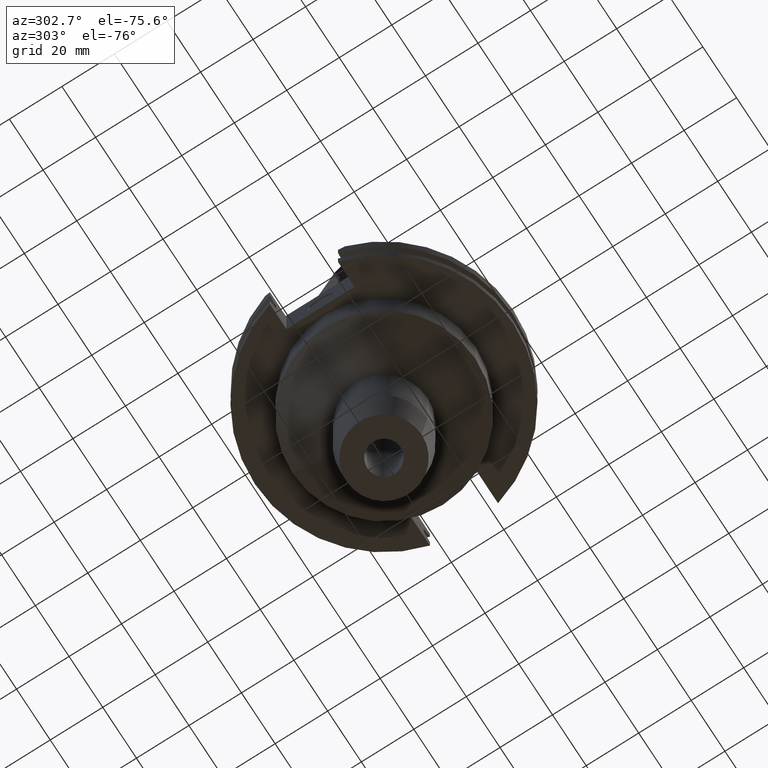
[diagram: clean part render]
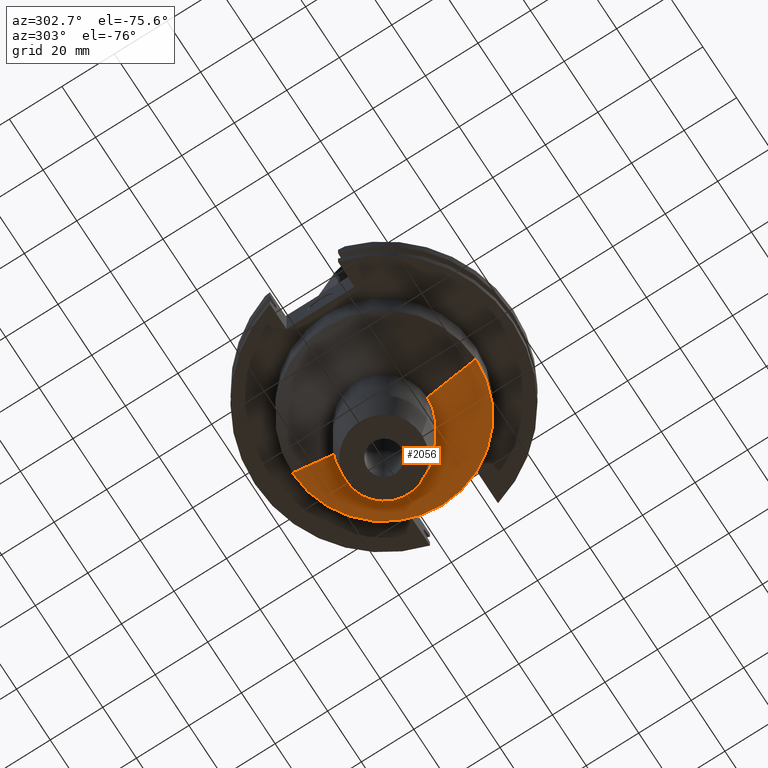
[diagram: same view with one face highlighted and labeled with its STEP entity id]
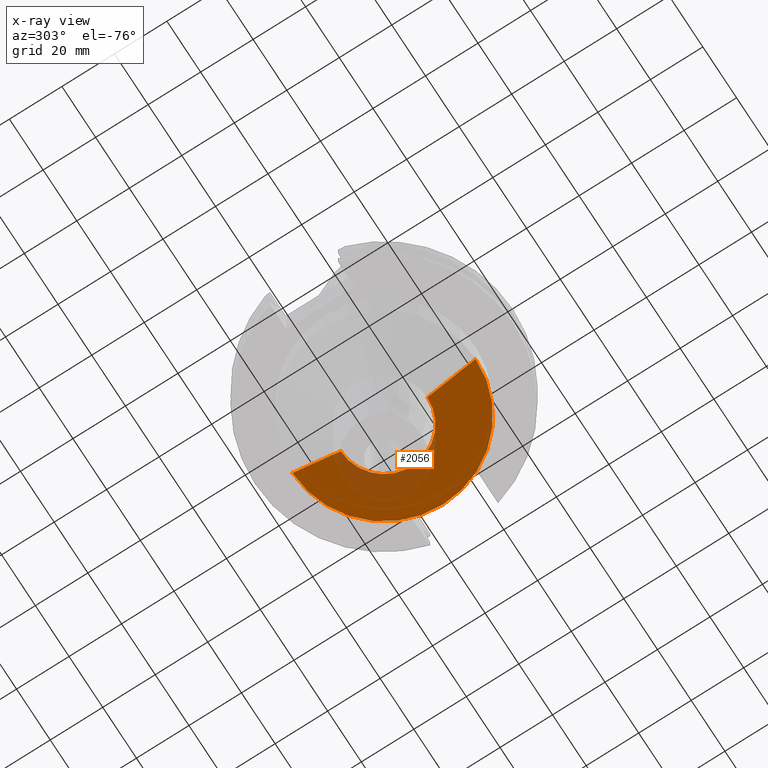
[diagram: x-ray of the same camera — body ghosted, the highlighted face saturated]
A machine part, auxiliary view. The second image highlights one B-rep face of the part: STEP entity #2056.
The next image is the same camera in x-ray: the body ghosted, the highlighted face saturated — about 19% of this face is hidden behind the body in this view.
In plain terms, the highlighted conical surface has half-angle 59.92 deg.
Its self-contained STEP definition (entity closure, byte-faithful):
#862=DIRECTION('',(0.E0,-8.653264281301E-1,-5.012087117954E-1));
#863=VECTOR('',#862,2.129254279199E1);
#864=CARTESIAN_POINT('',(0.E0,3.4925E1,-3.5E1));
#865=LINE('',#864,#863);
#869=CARTESIAN_POINT('',(0.E0,0.E0,-4.567200794362E1));
#870=DIRECTION('',(0.E0,0.E0,-1.E0));
#871=DIRECTION('',(0.E0,1.E0,0.E0));
#872=AXIS2_PLACEMENT_3D('',#869,#870,#871);
#877=CARTESIAN_POINT('',(0.E0,0.E0,-3.5E1));
#878=DIRECTION('',(0.E0,0.E0,1.E0));
#879=DIRECTION('',(0.E0,-1.E0,0.E0));
#880=AXIS2_PLACEMENT_3D('',#877,#878,#879);
#893=DIRECTION('',(0.E0,8.653264281301E-1,-5.012087117954E-1));
#894=VECTOR('',#893,2.129254279199E1);
#895=CARTESIAN_POINT('',(0.E0,-3.4925E1,-3.5E1));
#896=LINE('',#895,#894);
#1268=CARTESIAN_POINT('',(0.E0,1.65E1,-4.567200794362E1));
#1269=VERTEX_POINT('',#1268);
#1270=CARTESIAN_POINT('',(0.E0,-1.65E1,-4.567200794362E1));
#1271=VERTEX_POINT('',#1270);
#1272=CARTESIAN_POINT('',(0.E0,3.4925E1,-3.5E1));
#1273=VERTEX_POINT('',#1272);
#1274=CARTESIAN_POINT('',(0.E0,-3.4925E1,-3.5E1));
#1275=VERTEX_POINT('',#1274);
#2042=CARTESIAN_POINT('',(0.E0,0.E0,-4.033600397181E1));
#2043=DIRECTION('',(0.E0,0.E0,1.E0));
#2044=DIRECTION('',(0.E0,1.E0,0.E0));
#2045=AXIS2_PLACEMENT_3D('',#2042,#2043,#2044);
#2046=CONICAL_SURFACE('',#2045,2.57125E1,5.992E1);
#2048=ORIENTED_EDGE('',*,*,#2047,.T.);
#2050=ORIENTED_EDGE('',*,*,#2049,.T.);
#2052=ORIENTED_EDGE('',*,*,#2051,.F.);
#2053=ORIENTED_EDGE('',*,*,#2035,.T.);
#2054=EDGE_LOOP('',(#2048,#2050,#2052,#2053));
#2055=FACE_OUTER_BOUND('',#2054,.F.);
#873=CIRCLE('',#872,1.65E1);
#881=CIRCLE('',#880,3.4925E1);
#2035=EDGE_CURVE('',#1275,#1273,#881,.T.);
#2047=EDGE_CURVE('',#1273,#1269,#865,.T.);
#2049=EDGE_CURVE('',#1269,#1271,#873,.T.);
#2051=EDGE_CURVE('',#1275,#1271,#896,.T.);
#2056=ADVANCED_FACE('',(#2055),#2046,.T.);